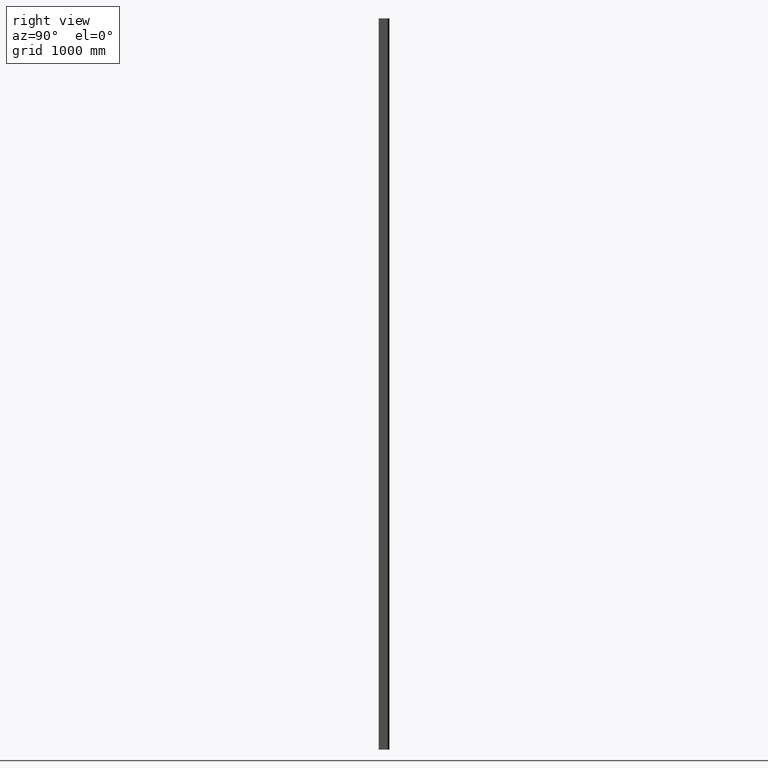
[diagram: clean part render]
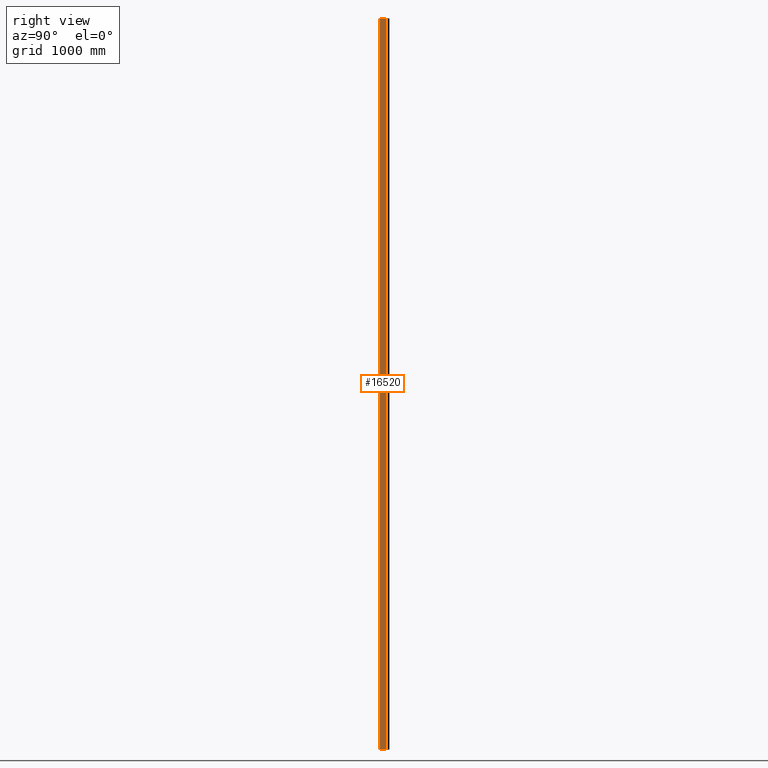
[diagram: same view with one face highlighted and labeled with its STEP entity id]
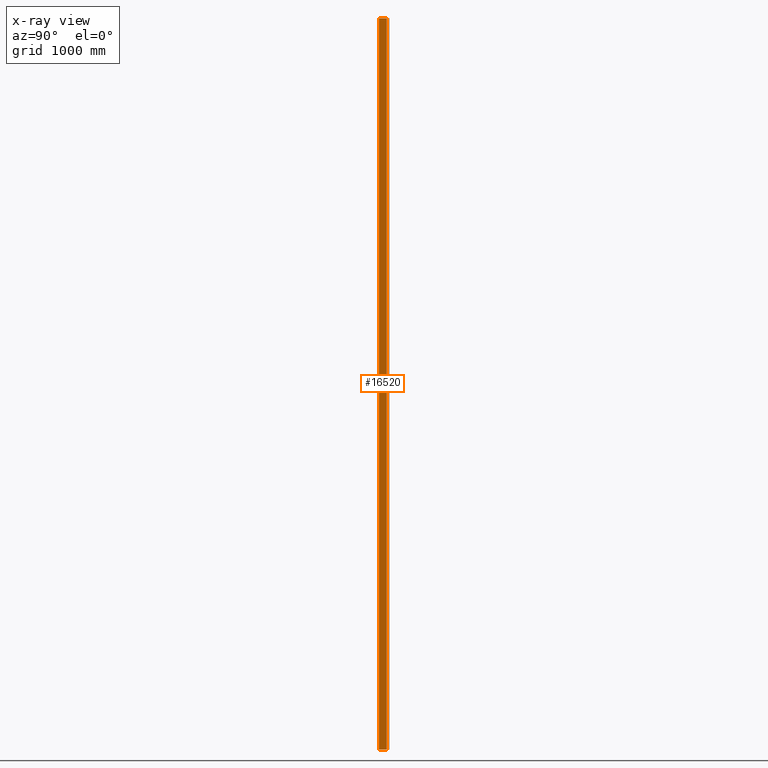
[diagram: x-ray of the same camera — body ghosted, the highlighted face saturated]
A machine part, right view. The second image highlights one B-rep face of the part: STEP entity #16520.
The next image is the same camera in x-ray: the body ghosted, the highlighted face saturated — about 0% of this face is hidden behind the body in this view.
In plain terms, the highlighted planar face has unit normal (1, 0, 0).
Its self-contained STEP definition (entity closure, byte-faithful):
#6393=CARTESIAN_POINT('',(23.430508473389864,8.000000000000011,10120.0));
#6394=VERTEX_POINT('',#6393);
#6402=CARTESIAN_POINT('',(23.430508473389864,110.90014245043156,10120.0));
#6403=VERTEX_POINT('',#6402);
#6404=CARTESIAN_POINT('',(23.430508473389864,110.90014245043156,10120.0));
#6405=DIRECTION('',(0.0,-1.0,0.0));
#6406=VECTOR('',#6405,102.90014245043155);
#6407=LINE('',#6404,#6406);
#6408=EDGE_CURVE('',#6403,#6394,#6407,.T.);
#16477=CARTESIAN_POINT('',(23.430508473389864,110.90014245043156,0.0));
#16478=VERTEX_POINT('',#16477);
#16479=CARTESIAN_POINT('',(23.430508473389864,110.90014245043156,0.0));
#16480=DIRECTION('',(0.0,0.0,1.0));
#16481=VECTOR('',#16480,10120.0);
#16482=LINE('',#16479,#16481);
#16483=EDGE_CURVE('',#16478,#6403,#16482,.T.);
#16497=CARTESIAN_POINT('',(23.430508473389864,110.90014245043156,0.0));
#16498=DIRECTION('',(1.0,0.0,0.0));
#16499=DIRECTION('',(0.0,0.0,-1.0));
#16500=AXIS2_PLACEMENT_3D('',#16497,#16498,#16499);
#16501=PLANE('',#16500);
#16502=CARTESIAN_POINT('',(23.430508473389864,8.000000000000011,0.0));
#16503=VERTEX_POINT('',#16502);
#16504=CARTESIAN_POINT('',(23.430508473389864,8.000000000000011,0.0));
#16505=DIRECTION('',(0.0,0.0,1.0));
#16506=VECTOR('',#16505,10120.0);
#16507=LINE('',#16504,#16506);
#16508=EDGE_CURVE('',#16503,#6394,#16507,.T.);
#16509=ORIENTED_EDGE('',*,*,#16508,.F.);
#16510=CARTESIAN_POINT('',(23.430508473389864,8.000000000000011,0.0));
#16511=DIRECTION('',(0.0,1.0,0.0));
#16512=VECTOR('',#16511,102.90014245043155);
#16513=LINE('',#16510,#16512);
#16514=EDGE_CURVE('',#16503,#16478,#16513,.T.);
#16515=ORIENTED_EDGE('',*,*,#16514,.T.);
#16516=ORIENTED_EDGE('',*,*,#16483,.T.);
#16517=ORIENTED_EDGE('',*,*,#6408,.T.);
#16518=EDGE_LOOP('',(#16509,#16515,#16516,#16517));
#16519=FACE_OUTER_BOUND('',#16518,.T.);
#16520=ADVANCED_FACE('',(#16519),#16501,.T.);